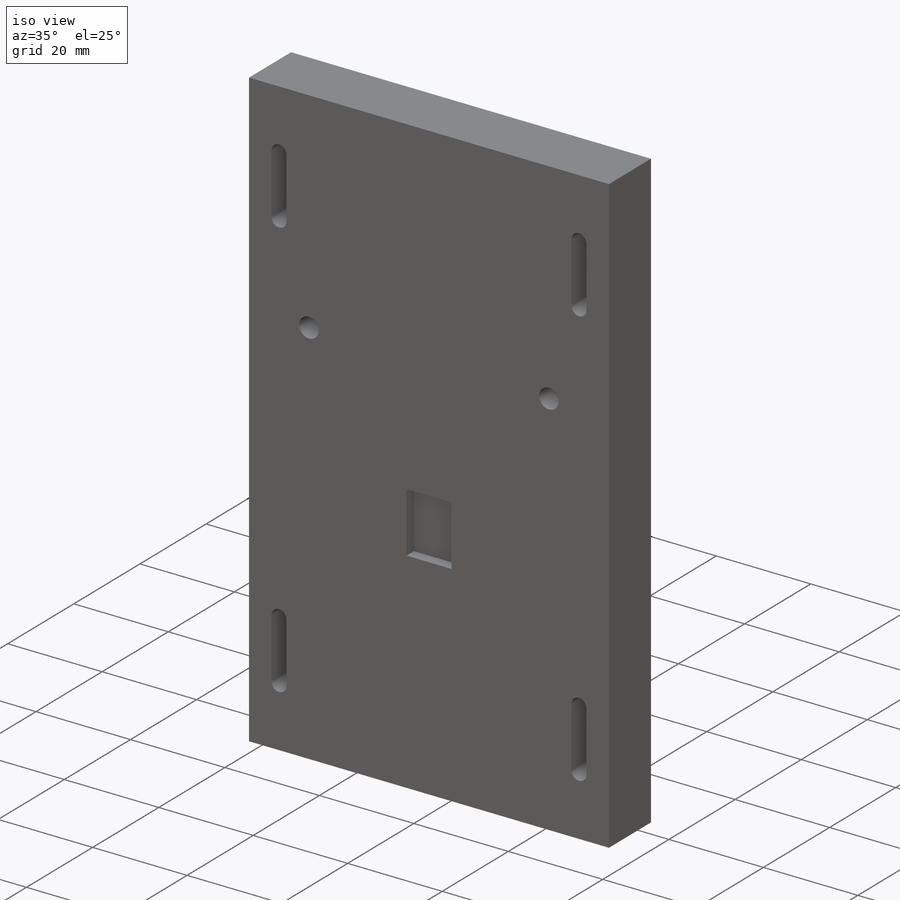
[diagram: iso view]
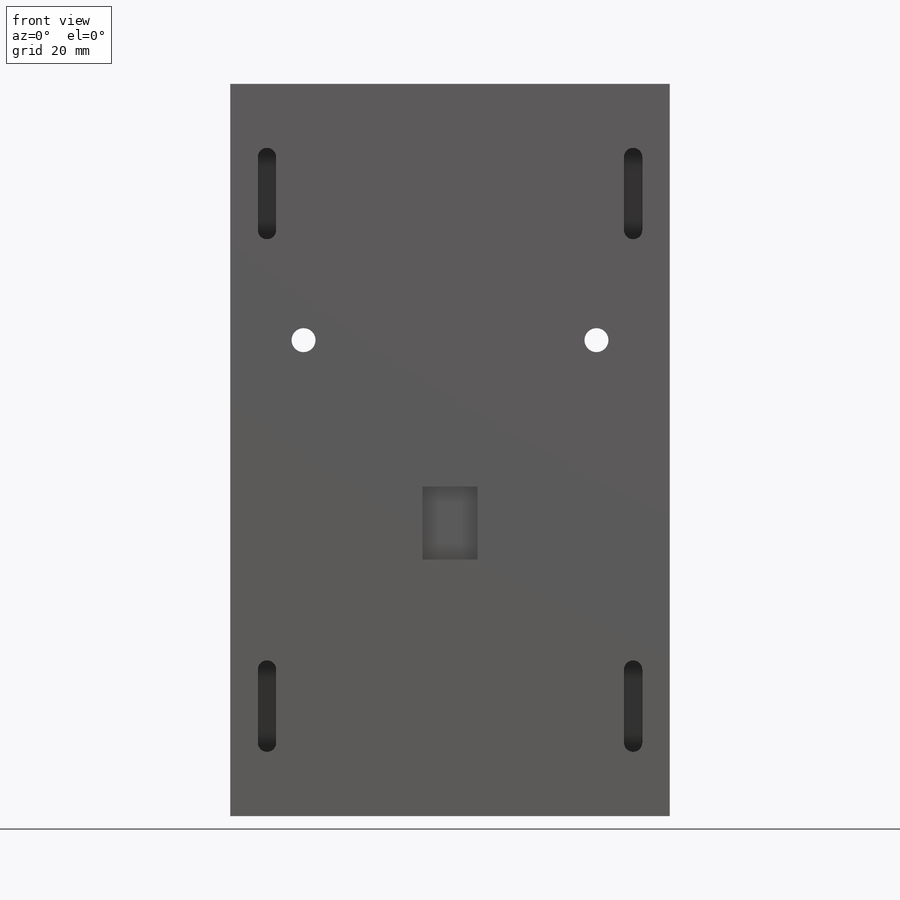
[diagram: front view]
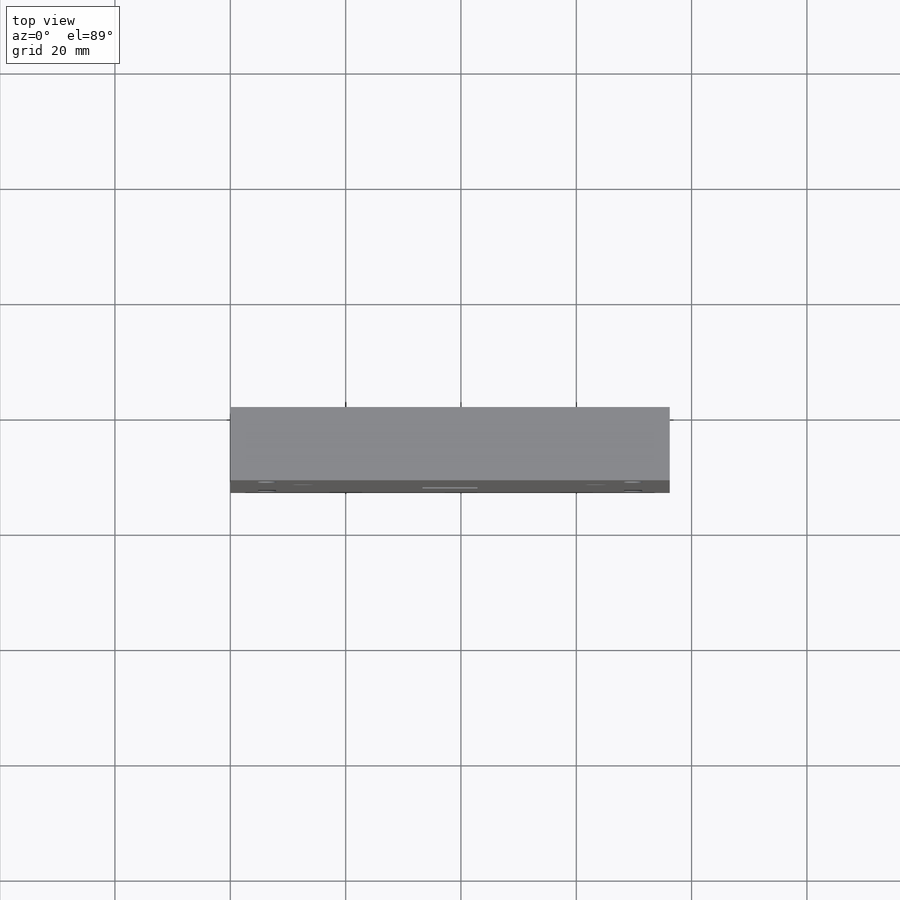
[diagram: top view]
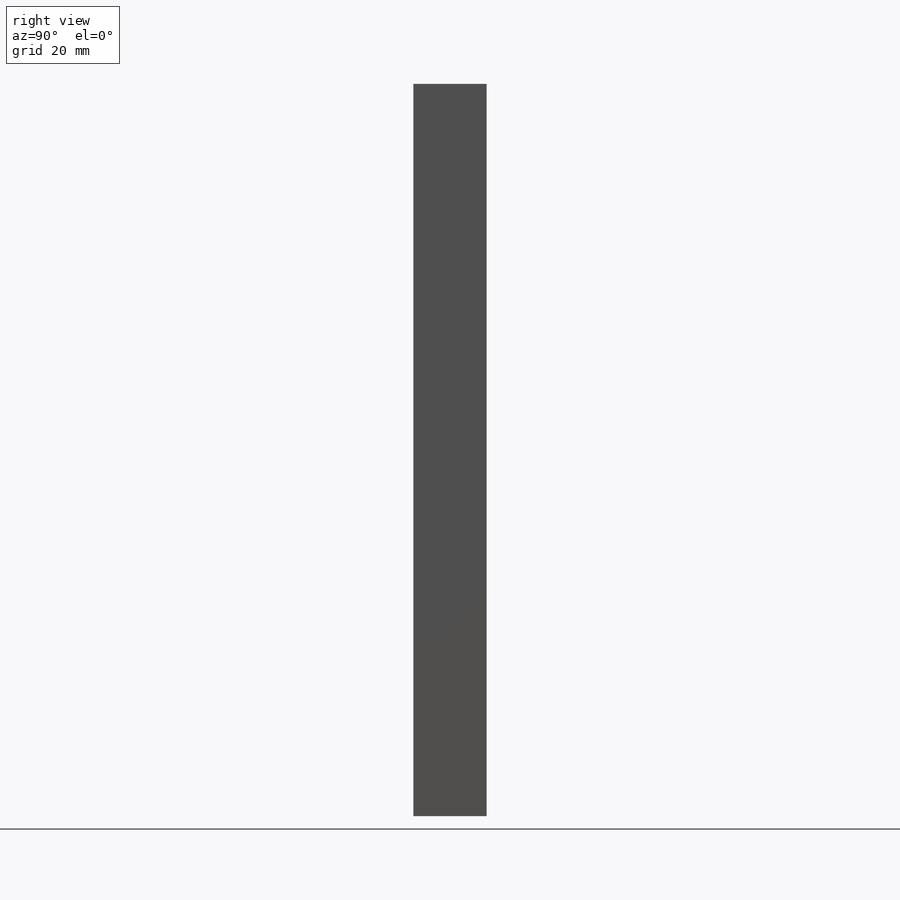
[diagram: right view]
SOLIDWORKS PART (.sldprt)
format: sldprt  version: not decoded by parser v0  size: 197,632 bytes
history: native  units: mm
features: sketch x5, cut_extrude x4, material x1, extrude x1 (+16 scaffold rows collapsed)
feature tree (27):
  scaffold x16  (default folders/planes/origin — collapsed)
  material  "Material <not specified>"
  sketch  "Sketch1"
  extrude  "Boss-Extrude1"  Depth=12.7mm
  sketch  "Sketch2"  dims[c1.D1=1.5875mm c1.D2=1.5875mm c2.D1=2.0 c2.D2=2.0]
  cut_extrude  "Cut-Extrude1"  Depth=6.35mm
  sketch  "Sketch3"  dims[c1.D1=1.5875mm c1.D2=1.5875mm c2.D1=2.0 c2.D2=2.0]
  cut_extrude  "Cut-Extrude2"  Depth=6.35mm
  sketch  "Sketch4"
  cut_extrude  "Cut-Extrude3"  Depth=2.2225mm
  sketch  "Sketch5"  dims[D1=3.175mm]
  cut_extrude  "Cut-Extrude4"  Depth=25.4mm
decode coverage: 8 of 10 modeling features carry decoded parameters
note: suppression state not decoded; provenance and decode notes live in map.json
